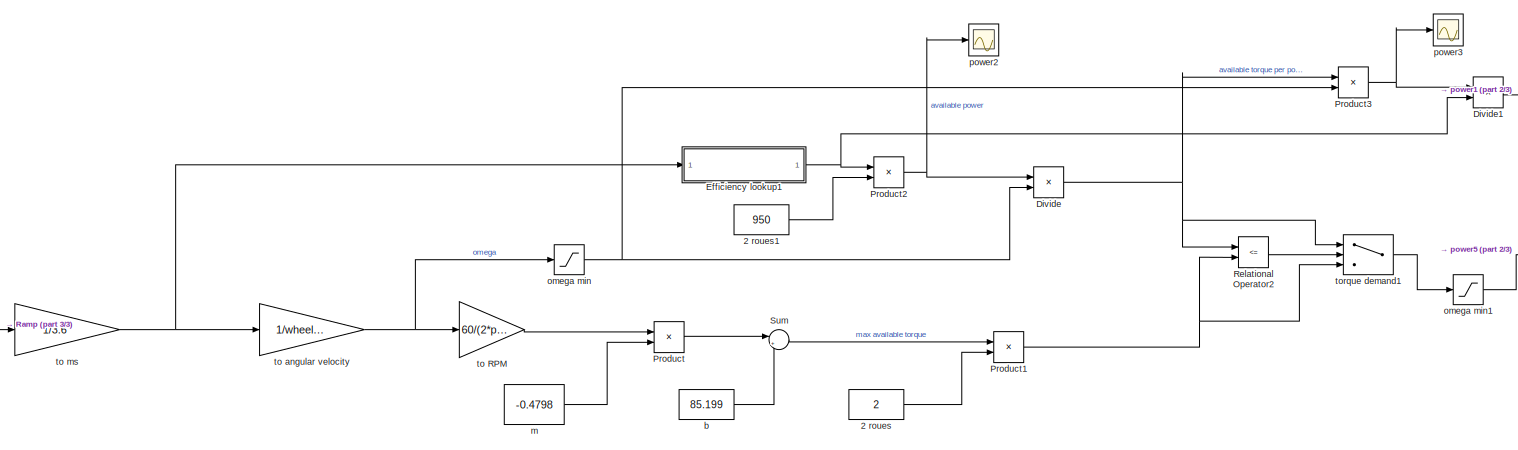
[diagram: root canvas - part 1/3, most of the canvas]
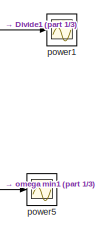
[diagram: root canvas - part 2/3, middle right region]
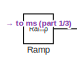
[diagram: root canvas - part 3/3, bottom left region]
MODEL slx_eec57bd52837
KIND model
CONFIG AbsTol = auto
CONFIG FixedStep = 0.01
CONFIG MaxStep = auto
CONFIG MinStep = auto
CONFIG RelTol = 1e-3
CONFIG SampleTimeConstraint = Unconstrained
CONFIG Solver = ode3
CONFIG SolverMode = Auto
CONFIG SolverName = ode3
CONFIG StartTime = 0.0
CONFIG StopTime = 30
BLOCK [Constant] 2 roues
  Value = 2
BLOCK [Constant] 2 roues1
  Value = 950
BLOCK [Product] Divide
  InputSameDT = off
  Inputs = */
  OutDataTypeStr = Inherit: Inherit via internal rule
  Ports = [2, 1]
  RndMeth = Floor
  SaturateOnIntegerOverflow = off
BLOCK [Product] Divide1
  InputSameDT = off
  Inputs = */
  OutDataTypeStr = Inherit: Inherit via internal rule
  Ports = [2, 1]
  RndMeth = Floor
  SaturateOnIntegerOverflow = off
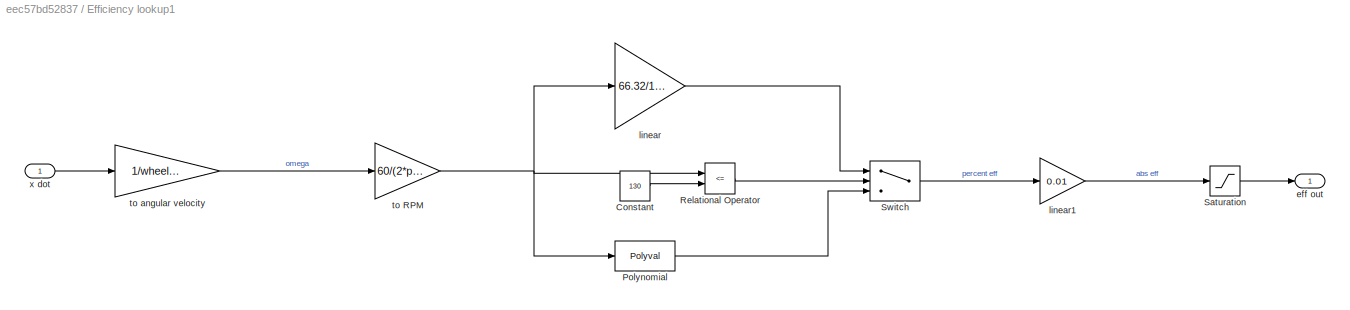
BLOCK [SubSystem] Efficiency lookup1
  Ports = [1, 1]
  RequestExecContextInheritance = off
BLOCK [Constant] Efficiency lookup1/Constant
  Value = 130
BLOCK [Polyval] Efficiency lookup1/Polynomial
  Coefs = [-0.000000281154604 0.00025333618 -0.0949601636 18.9528272 -2124.26186  126769.071 -3146791.96]
BLOCK [RelationalOperator] Efficiency lookup1/Relational Operator
  InputSameDT = off
  Operator = <=
  OutDataTypeStr = boolean
  Ports = [2, 1]
BLOCK [Saturate] Efficiency lookup1/Saturation
  InputPortMap = u0
  LowerLimit = 0.05
  Ports = [1, 1]
  UpperLimit = 1
BLOCK [Switch] Efficiency lookup1/Switch
  Criteria = u2 > Threshold
  InputSameDT = off
  SaturateOnIntegerOverflow = off
BLOCK [Outport] Efficiency lookup1/eff out
  IconDisplay = Port number
BLOCK [Gain] Efficiency lookup1/linear
  Gain = 66.32/130
  OutDataTypeStr = Inherit: Inherit via internal rule
  ParamDataTypeStr = Inherit: Inherit via internal rule
  SaturateOnIntegerOverflow = off
BLOCK [Gain] Efficiency lookup1/linear1
  Gain = 0.01
  OutDataTypeStr = Inherit: Inherit via internal rule
  ParamDataTypeStr = Inherit: Inherit via internal rule
  SaturateOnIntegerOverflow = off
BLOCK [Gain] Efficiency lookup1/to RPM
  Gain = 60/(2*pi)
  OutDataTypeStr = Inherit: Inherit via internal rule
  ParamDataTypeStr = Inherit: Inherit via internal rule
  SaturateOnIntegerOverflow = off
BLOCK [Gain] Efficiency lookup1/to angular velocity
  Gain = 1/wheel_radius
  OutDataTypeStr = Inherit: Inherit via internal rule
  ParamDataTypeStr = Inherit: Inherit via internal rule
  SaturateOnIntegerOverflow = off
BLOCK [Inport] Efficiency lookup1/x dot
  IconDisplay = Port number
BLOCK [Product] Product
  InputSameDT = off
  OutDataTypeStr = Inherit: Inherit via internal rule
  Ports = [2, 1]
  RndMeth = Floor
  SaturateOnIntegerOverflow = off
BLOCK [Product] Product1
  InputSameDT = off
  OutDataTypeStr = Inherit: Inherit via internal rule
  Ports = [2, 1]
  RndMeth = Floor
  SaturateOnIntegerOverflow = off
BLOCK [Product] Product2
  InputSameDT = off
  OutDataTypeStr = Inherit: Inherit via internal rule
  Ports = [2, 1]
  RndMeth = Floor
  SaturateOnIntegerOverflow = off
BLOCK [Product] Product3
  InputSameDT = off
  OutDataTypeStr = Inherit: Inherit via internal rule
  Ports = [2, 1]
  RndMeth = Floor
  SaturateOnIntegerOverflow = off
BLOCK [Reference] Ramp  REF=simulink/Sources/Ramp
  Ports = [0, 1]
  SourceBlock = simulink/Sources/Ramp
  SourceType = Ramp
  VectorParams1D = on
  X0 = 0
  slope = 1
  start = 0
BLOCK [RelationalOperator] Relational Operator2
  InputSameDT = off
  Operator = <=
  OutDataTypeStr = boolean
  Ports = [2, 1]
BLOCK [Sum] Sum
  IconShape = round
  InputSameDT = off
  Inputs = |++
  OutDataTypeStr = Inherit: Inherit via internal rule
  Ports = [2, 1]
  SaturateOnIntegerOverflow = off
BLOCK [Constant] b
  Value = 85.199
BLOCK [Constant] m
  Value = -0.4798
BLOCK [Saturate] omega min
  InputPortMap = u0
  LowerLimit = 0.1
  Ports = [1, 1]
  UpperLimit = 1000000
BLOCK [Saturate] omega min1
  InputPortMap = u0
  LowerLimit = 0
  Ports = [1, 1]
  UpperLimit = 1000000
BLOCK [Scope] power1
  Floating = off
  MaxDataPoints = 100000
  NumInputPorts = 1
  Ports = [1]
  SaveName = ScopeData13
  TimeRange = 700
  YMax = 1100
  YMin = -500
  ZoomMode = xonly
BLOCK [Scope] power2
  Floating = off
  MaxDataPoints = scope_history
  NumInputPorts = 1
  Ports = [1]
  SaveName = ScopeData16
  TimeRange = 700
  YMax = 475
  YMin = -75
  ZoomMode = yonly
BLOCK [Scope] power3
  Floating = off
  MaxDataPoints = scope_history
  NumInputPorts = 1
  Ports = [1]
  SaveName = ScopeData17
  TimeRange = 700
  YMax = 475
  YMin = -75
  ZoomMode = yonly
BLOCK [Scope] power5
  Floating = off
  MaxDataPoints = 100000
  NumInputPorts = 1
  Ports = [1]
  TimeRange = 700
  YMax = 1100
  YMin = -500
  ZoomMode = yonly
BLOCK [Gain] to RPM
  Gain = 60/(2*pi)
  OutDataTypeStr = Inherit: Inherit via internal rule
  ParamDataTypeStr = Inherit: Inherit via internal rule
  SaturateOnIntegerOverflow = off
BLOCK [Gain] to angular velocity
  Gain = 1/wheel_radius
  OutDataTypeStr = Inherit: Inherit via internal rule
  ParamDataTypeStr = Inherit: Inherit via internal rule
  SaturateOnIntegerOverflow = off
BLOCK [Gain] to ms
  Gain = 1/3.6
  OutDataTypeStr = Inherit: Inherit via internal rule
  ParamDataTypeStr = Inherit: Inherit via internal rule
  SaturateOnIntegerOverflow = off
BLOCK [Switch] torque demand1
  Criteria = u2 > Threshold
  InputSameDT = off
  SaturateOnIntegerOverflow = off
LINE 2 roues1:1 -> Product2:2
LINE 2 roues:1 -> Product1:2
LINE Divide1:1 -> power1:1
NET Divide:1 -> Product3:1, Relational Operator2:1, torque demand1:1
LINE Efficiency lookup1/Constant:1 -> Efficiency lookup1/Relational Operator:2
LINE Efficiency lookup1/Polynomial:1 -> Efficiency lookup1/Switch:3
LINE Efficiency lookup1/Relational Operator:1 -> Efficiency lookup1/Switch:2
LINE Efficiency lookup1/Saturation:1 -> Efficiency lookup1/eff out:1
LINE Efficiency lookup1/Switch:1 -> Efficiency lookup1/linear1:1
LINE Efficiency lookup1/linear1:1 -> Efficiency lookup1/Saturation:1
LINE Efficiency lookup1/linear:1 -> Efficiency lookup1/Switch:1
NET Efficiency lookup1/to RPM:1 -> Efficiency lookup1/Polynomial:1, Efficiency lookup1/Relational Operator:1, Efficiency lookup1/linear:1
LINE Efficiency lookup1/to angular velocity:1 -> Efficiency lookup1/to RPM:1
LINE Efficiency lookup1/x dot:1 -> Efficiency lookup1/to angular velocity:1
NET Efficiency lookup1:1 -> Divide1:2, Product2:1
NET Product1:1 -> Relational Operator2:2, torque demand1:3
NET Product2:1 -> Divide:1, power2:1
NET Product3:1 -> Divide1:1, power3:1
LINE Product:1 -> Sum:1
LINE Ramp:1 -> to ms:1
LINE Relational Operator2:1 -> torque demand1:2
LINE Sum:1 -> Product1:1
LINE b:1 -> Sum:2
LINE m:1 -> Product:2
LINE omega min1:1 -> power5:1
NET omega min:1 -> Divide:2, Product3:2
LINE to RPM:1 -> Product:1
NET to angular velocity:1 -> omega min:1, to RPM:1
NET to ms:1 -> Efficiency lookup1:1, to angular velocity:1
LINE torque demand1:1 -> omega min1:1
note: NET lines group one-source signal fan-out (src -> all destinations, sorted); 1:1 wires keep LINE
